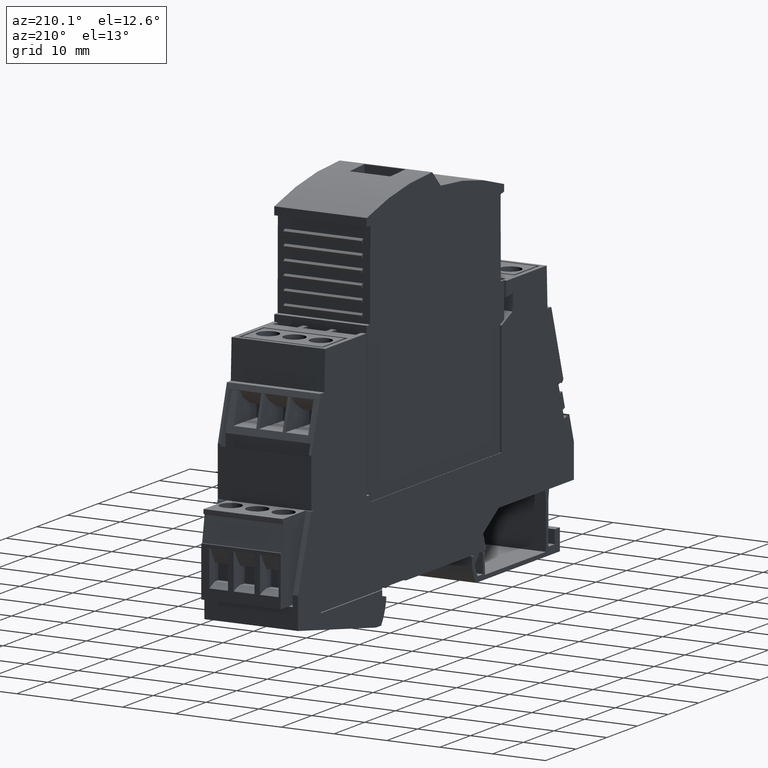
[diagram: clean part render]
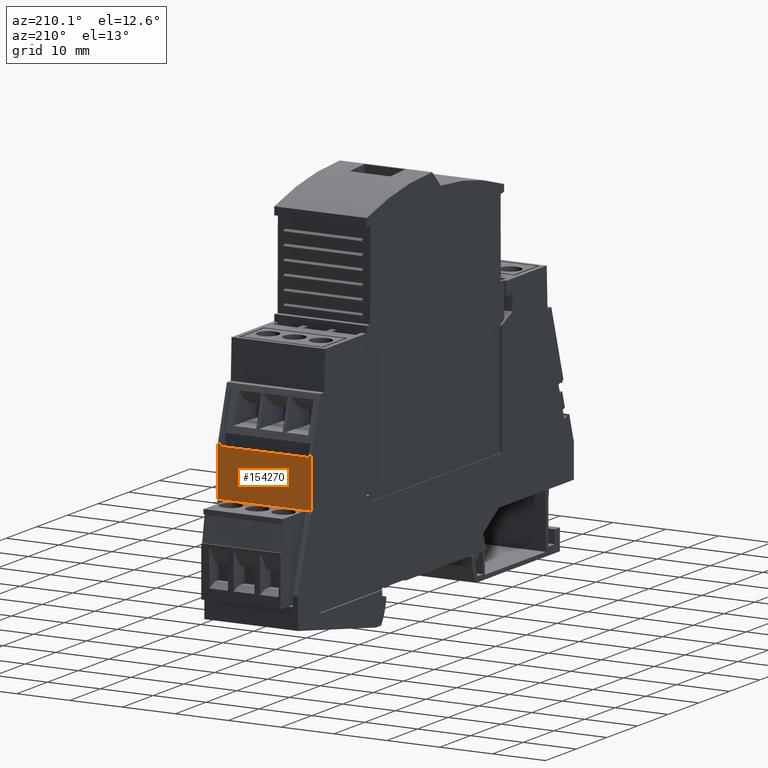
[diagram: same view with one face highlighted and labeled with its STEP entity id]
A machine part, auxiliary view. The second image highlights one B-rep face of the part: STEP entity #154270.
In plain terms, the highlighted planar face has unit normal (0, -1, 0).
Its self-contained STEP definition (entity closure, byte-faithful):
#45720=CARTESIAN_POINT('',(28.6913512994151,47.6916109385101,
-50.69282032312));
#45730=VERTEX_POINT('',#45720);
#45760=CARTESIAN_POINT('',(28.6913512994164,15.060393,-50.69282032312));
#45770=DIRECTION('',(4.2441955493114E-14,-1.,1.55207209160014E-17));
#45780=VECTOR('',#45770,1.);
#45790=LINE('',#45760,#45780);
#45800=CARTESIAN_POINT('',(28.691351299415,48.0427163947504,
-50.69282032312));
#45810=VERTEX_POINT('',#45800);
#45820=EDGE_CURVE('',#45810,#45730,#45790,.T.);
#71010=CARTESIAN_POINT('',(28.6913512994164,15.060393,-33.5000000000924)
);
#71020=DIRECTION('',(4.2441955493114E-14,-1.,-6.31088724176809E-30));
#71030=VECTOR('',#71020,1.);
#71040=LINE('',#71010,#71030);
#71050=CARTESIAN_POINT('',(28.691351299415,48.0427163947507,
-33.5000000000924));
#71060=VERTEX_POINT('',#71050);
#71070=CARTESIAN_POINT('',(28.6913512994154,38.7562740524424,
-33.5000000000924));
#71080=VERTEX_POINT('',#71070);
#71090=EDGE_CURVE('',#71060,#71080,#71040,.T.);
#77690=CARTESIAN_POINT('',(28.6913512994154,38.7562740524424,
-51.2000000000924));
#77700=VERTEX_POINT('',#77690);
#77730=CARTESIAN_POINT('',(28.6913512994154,38.7562740524424,
-41.3000000000924));
#77740=DIRECTION('',(0.,0.,1.));
#77750=VECTOR('',#77740,1.);
#77760=LINE('',#77730,#77750);
#77770=EDGE_CURVE('',#77700,#71080,#77760,.T.);
#90570=CARTESIAN_POINT('',(28.691351299415,48.0427163947507,
-51.2000000000924));
#90580=VERTEX_POINT('',#90570);
#90610=CARTESIAN_POINT('',(28.6913512994164,15.060393,-51.2000000000924)
);
#90620=DIRECTION('',(4.2441955493114E-14,-1.,0.));
#90630=VECTOR('',#90620,1.);
#90640=LINE('',#90610,#90630);
#90650=EDGE_CURVE('',#90580,#77700,#90640,.T.);
#153660=CARTESIAN_POINT('',(28.6913512994151,48.0427163947504,
-41.3000000000924));
#153670=DIRECTION('',(0.,0.,1.));
#153680=VECTOR('',#153670,1.);
#153690=LINE('',#153660,#153680);
#153700=CARTESIAN_POINT('',(28.691351299415,48.0427163947504,
-34.0071796770649));
#153710=VERTEX_POINT('',#153700);
#153720=EDGE_CURVE('',#153710,#71060,#153690,.T.);
#153820=CARTESIAN_POINT('',(28.6913512994151,48.0427163947504,
-41.3000000000924));
#153830=DIRECTION('',(0.,0.,1.));
#153840=VECTOR('',#153830,1.);
#153850=LINE('',#153820,#153840);
#153860=EDGE_CURVE('',#90580,#45810,#153850,.T.);
#154000=CARTESIAN_POINT('',(28.6913512994154,38.8562740524424,
-33.5000000000924));
#154010=DIRECTION('',(1.,4.2441955493114E-14,0.));
#154020=DIRECTION('',(4.2441955493114E-14,-1.,0.));
#154030=AXIS2_PLACEMENT_3D('',#154000,#154010,#154020);
#154040=PLANE('',#154030);
#154050=ORIENTED_EDGE('',*,*,#77770,.T.);
#154060=ORIENTED_EDGE('',*,*,#90650,.T.);
#154070=ORIENTED_EDGE('',*,*,#153860,.F.);
#154080=ORIENTED_EDGE('',*,*,#45820,.F.);
#154090=CARTESIAN_POINT('',(28.6913512994151,47.6916109385101,
-41.3000000000924));
#154100=DIRECTION('',(-7.20181034150892E-31,1.69714620944818E-17,1.));
#154110=VECTOR('',#154100,1.);
#154120=LINE('',#154090,#154110);
#154130=CARTESIAN_POINT('',(28.6913512994151,47.6916109385101,
-34.0071796770649));
#154140=VERTEX_POINT('',#154130);
#154150=EDGE_CURVE('',#45730,#154140,#154120,.T.);
#154160=ORIENTED_EDGE('',*,*,#154150,.F.);
#154170=CARTESIAN_POINT('',(28.6913512994164,15.060393,-34.0071796770649
));
#154180=DIRECTION('',(-4.2441955493114E-14,1.,-1.55207209160014E-17));
#154190=VECTOR('',#154180,1.);
#154200=LINE('',#154170,#154190);
#154210=EDGE_CURVE('',#154140,#153710,#154200,.T.);
#154220=ORIENTED_EDGE('',*,*,#154210,.F.);
#154230=ORIENTED_EDGE('',*,*,#153720,.F.);
#154240=ORIENTED_EDGE('',*,*,#71090,.F.);
#154250=EDGE_LOOP('',(#154240,#154230,#154220,#154160,#154080,#154070,
#154060,#154050));
#154260=FACE_OUTER_BOUND('',#154250,.T.);
#154270=ADVANCED_FACE('',(#154260),#154040,.F.);